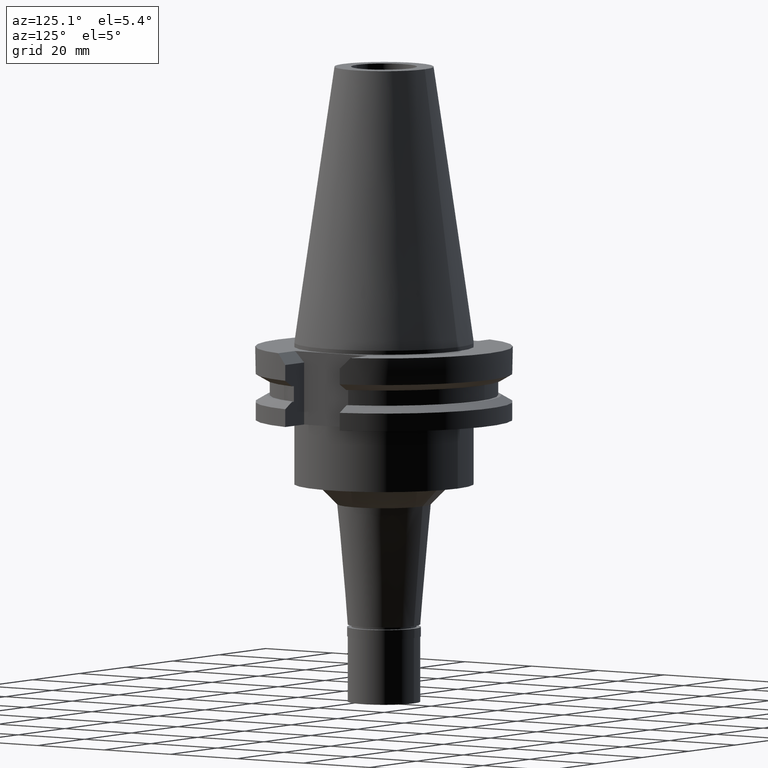
[diagram: clean part render]
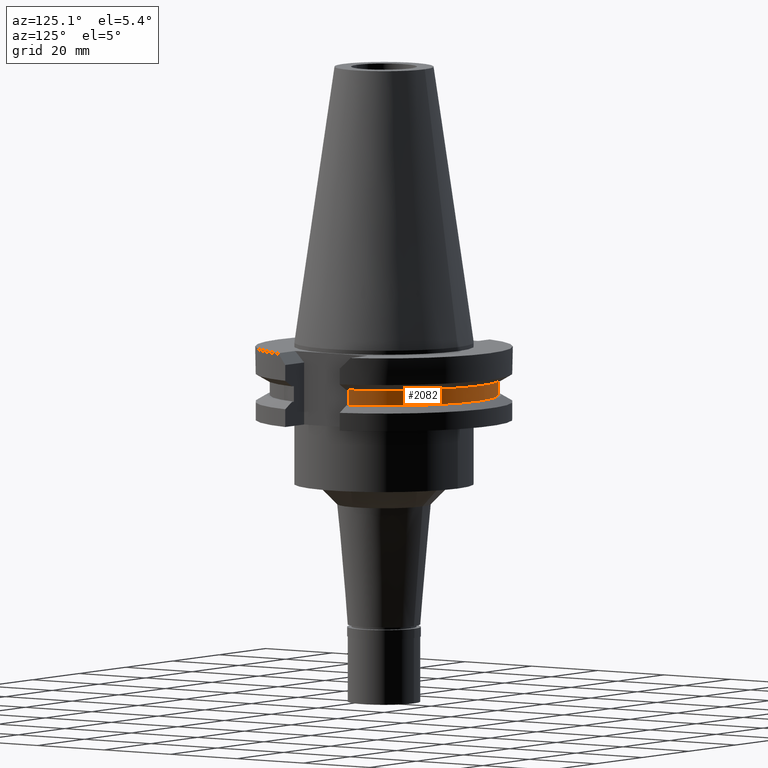
[diagram: same view with one face highlighted and labeled with its STEP entity id]
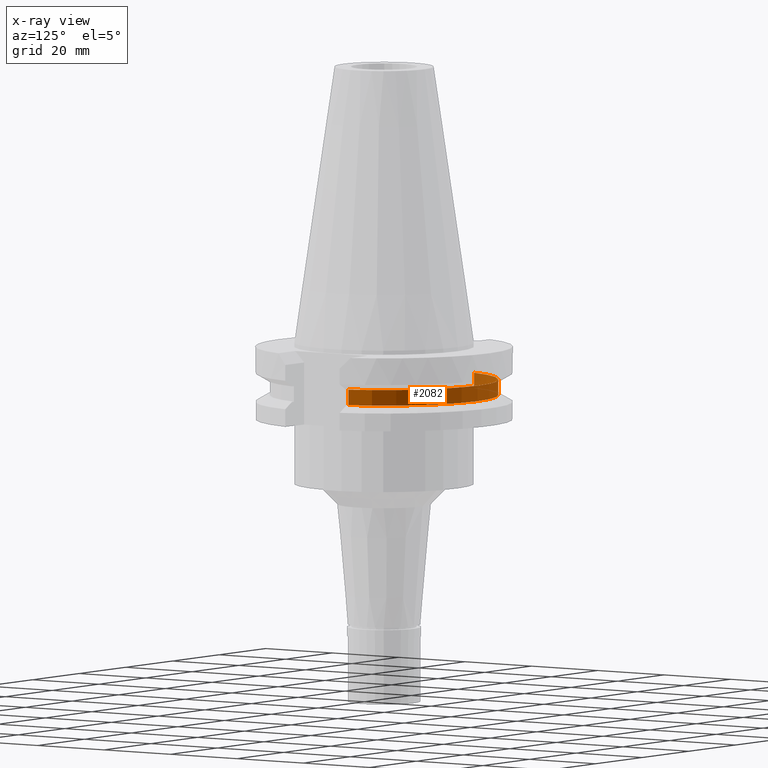
[diagram: x-ray of the same camera — body ghosted, the highlighted face saturated]
A machine part, auxiliary view. The second image highlights one B-rep face of the part: STEP entity #2082.
The next image is the same camera in x-ray: the body ghosted, the highlighted face saturated — about 8% of this face is hidden behind the body in this view.
In plain terms, the highlighted cylindrical surface (partial cylindrical patch) has radius 28.18 mm, axis along (0, 0, -1).
Its self-contained STEP definition (entity closure, byte-faithful):
#84 = VERTEX_POINT ( 'NONE', #1833 ) ;
#86 = FACE_OUTER_BOUND ( 'NONE', #1890, .T. ) ;
#97 = CARTESIAN_POINT ( 'NONE',  ( 0.0000000000000000000, 2.153878174169999899E-14, -13.04749999999999943 ) ) ;
#122 = CARTESIAN_POINT ( 'NONE',  ( 0.0000000000000000000, 2.153878174169999899E-14, 75.87749999999999773 ) ) ;
#180 = AXIS2_PLACEMENT_3D ( 'NONE', #97, #198, #822 ) ;
#198 = DIRECTION ( 'NONE',  ( 0.0000000000000000000, 0.0000000000000000000, 1.000000000000000000 ) ) ;
#325 = ORIENTED_EDGE ( 'NONE', *, *, #2525, .T. ) ;
#360 = ORIENTED_EDGE ( 'NONE', *, *, #2124, .T. ) ;
#378 = DIRECTION ( 'NONE',  ( 0.0000000000000000000, 0.0000000000000000000, -1.000000000000000000 ) ) ;
#614 = CARTESIAN_POINT ( 'NONE',  ( -26.96361066326000255, 8.189999999999999503, -9.207499999999999574 ) ) ;
#642 = DIRECTION ( 'NONE',  ( -0.9568350128907829877, 0.2906316536550950236, 0.0000000000000000000 ) ) ;
#685 = DIRECTION ( 'NONE',  ( 0.0000000000000000000, 0.0000000000000000000, 1.000000000000000000 ) ) ;
#728 = VERTEX_POINT ( 'NONE', #2253 ) ;
#822 = DIRECTION ( 'NONE',  ( 0.0000000000000000000, 1.000000000000000000, 0.0000000000000000000 ) ) ;
#848 = CARTESIAN_POINT ( 'NONE',  ( 0.0000000000000000000, 2.153878174169999899E-14, -9.207499999999999574 ) ) ;
#952 = CARTESIAN_POINT ( 'NONE',  ( 26.96361066326000255, 8.189999999999999503, -9.207499999999999574 ) ) ;
#1010 = ORIENTED_EDGE ( 'NONE', *, *, #3096, .F. ) ;
#1048 = CIRCLE ( 'NONE', #1770, 28.17999999999999616 ) ;
#1128 = VERTEX_POINT ( 'NONE', #2955 ) ;
#1139 = VERTEX_POINT ( 'NONE', #952 ) ;
#1770 = AXIS2_PLACEMENT_3D ( 'NONE', #848, #2088, #642 ) ;
#1833 = CARTESIAN_POINT ( 'NONE',  ( 26.96361066326000255, 8.189999999999999503, -13.04749999999999943 ) ) ;
#1890 = EDGE_LOOP ( 'NONE', ( #2614, #325, #1010, #360 ) ) ;
#1900 = LINE ( 'NONE', #2804, #2080 ) ;
#2080 = VECTOR ( 'NONE', #685, 1000.000000000000000 ) ;
#2082 = ADVANCED_FACE ( 'NONE', ( #86 ), #2828, .T. ) ;
#2088 = DIRECTION ( 'NONE',  ( 0.0000000000000000000, 0.0000000000000000000, -1.000000000000000000 ) ) ;
#2124 = EDGE_CURVE ( 'NONE', #1128, #1139, #1048, .T. ) ;
#2253 = CARTESIAN_POINT ( 'NONE',  ( -26.96361066326000255, 8.189999999999999503, -13.04749999999999943 ) ) ;
#2457 = CIRCLE ( 'NONE', #180, 28.17999999999999972 ) ;
#2525 = EDGE_CURVE ( 'NONE', #84, #728, #2457, .T. ) ;
#2551 = DIRECTION ( 'NONE',  ( 0.0000000000000000000, 0.0000000000000000000, -1.000000000000000000 ) ) ;
#2614 = ORIENTED_EDGE ( 'NONE', *, *, #2617, .F. ) ;
#2617 = EDGE_CURVE ( 'NONE', #84, #1139, #1900, .T. ) ;
#2636 = LINE ( 'NONE', #614, #2640 ) ;
#2640 = VECTOR ( 'NONE', #378, 1000.000000000000000 ) ;
#2800 = AXIS2_PLACEMENT_3D ( 'NONE', #122, #2551, #2864 ) ;
#2804 = CARTESIAN_POINT ( 'NONE',  ( 26.96361066326000255, 8.189999999999999503, -13.04749999999999943 ) ) ;
#2828 = CYLINDRICAL_SURFACE ( 'NONE', #2800, 28.17999999999999972 ) ;
#2864 = DIRECTION ( 'NONE',  ( 0.0000000000000000000, -1.000000000000000000, 0.0000000000000000000 ) ) ;
#2955 = CARTESIAN_POINT ( 'NONE',  ( -26.96361066326000255, 8.189999999999999503, -9.207499999999999574 ) ) ;
#3096 = EDGE_CURVE ( 'NONE', #1128, #728, #2636, .T. ) ;